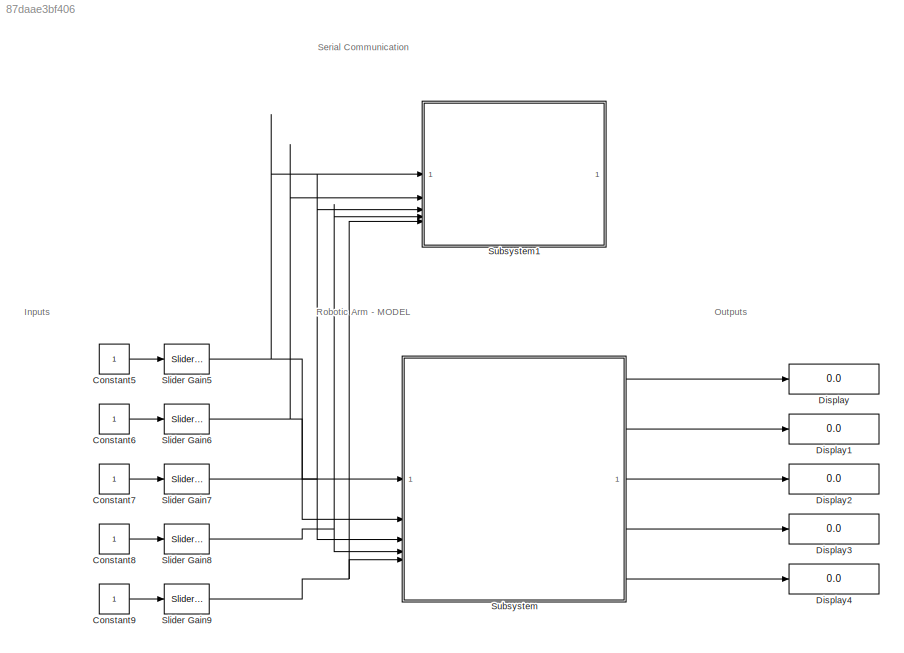
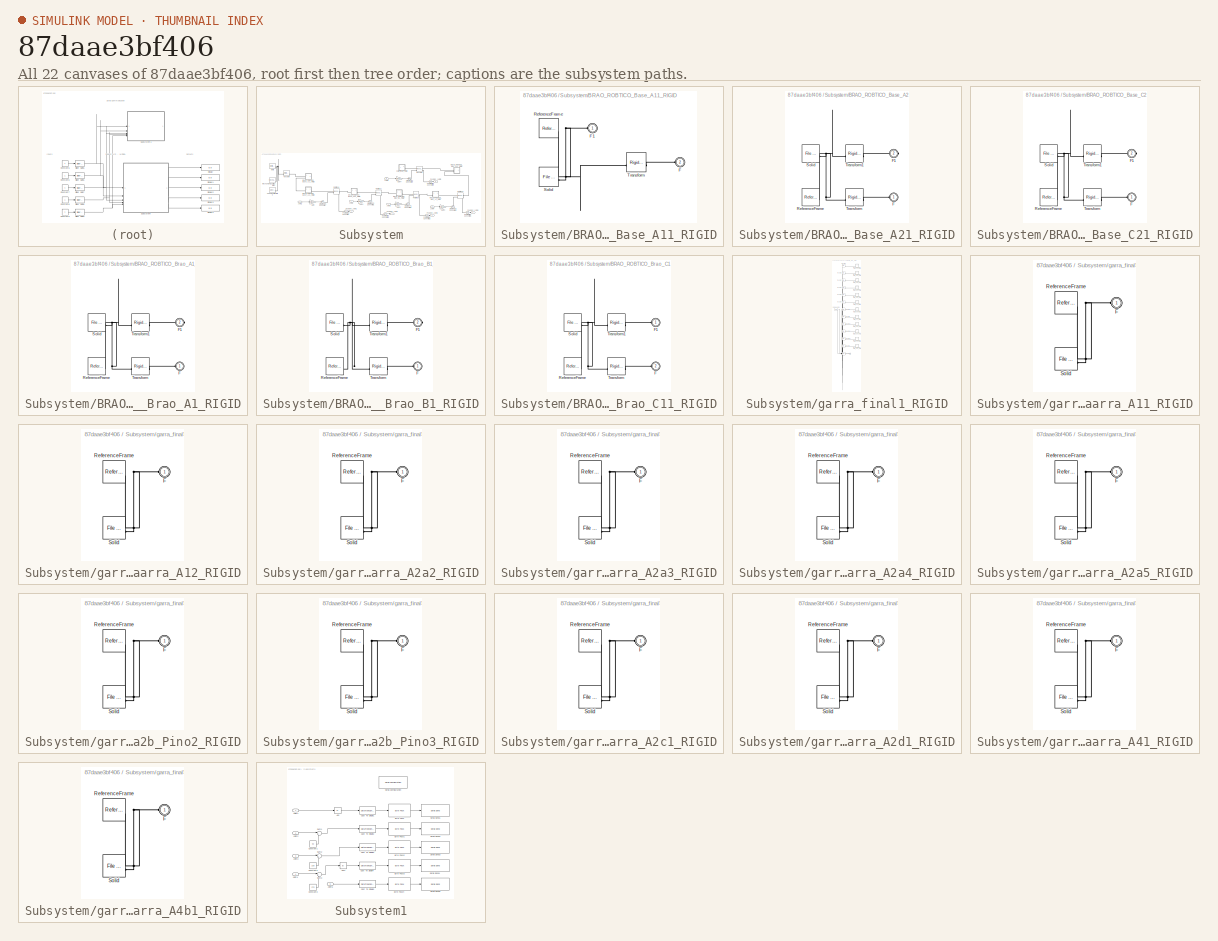
[diagram: thumbnail index - all 22 canvases of the model, root first then tree order]
MODEL slx_87daae3bf406
KIND model
CONFIG AbsTol = auto
CONFIG EnableMultiTasking = off
CONFIG FixedStep = auto
CONFIG MaxStep = auto
CONFIG MinStep = auto
CONFIG RelTol = 1e-3
CONFIG SampleTimeConstraint = Unconstrained
CONFIG SolverName = VariableStepAuto
CONFIG StartFcn = 1
CONFIG StartTime = 0.0
CONFIG StopTime = inf
WORKSPACE source: external: MATLAB File  (data not in archive)
BLOCK [Constant] Constant5
BLOCK [Constant] Constant6
BLOCK [Constant] Constant7
BLOCK [Constant] Constant8
BLOCK [Constant] Constant9
BLOCK [Display] Display
  Decimation = 1
BLOCK [Display] Display1
  Decimation = 1
BLOCK [Display] Display2
  Decimation = 1
BLOCK [Display] Display3
  Decimation = 1
BLOCK [Display] Display4
  Decimation = 1
BLOCK [Reference] Slider Gain5  REF=simulink/Math
Operations/Slider
Gain
  SourceBlock = simulink/Math\nOperations/Slider\nGain
  SourceType = Slider Gain
BLOCK [Reference] Slider Gain6  REF=simulink/Math
Operations/Slider
Gain
  SourceBlock = simulink/Math\nOperations/Slider\nGain
  SourceType = Slider Gain
BLOCK [Reference] Slider Gain7  REF=simulink/Math
Operations/Slider
Gain
  SourceBlock = simulink/Math\nOperations/Slider\nGain
  SourceType = Slider Gain
BLOCK [Reference] Slider Gain8  REF=simulink/Math
Operations/Slider
Gain
  SourceBlock = simulink/Math\nOperations/Slider\nGain
  SourceType = Slider Gain
BLOCK [Reference] Slider Gain9  REF=simulink/Math
Operations/Slider
Gain
  SourceBlock = simulink/Math\nOperations/Slider\nGain
  SourceType = Slider Gain
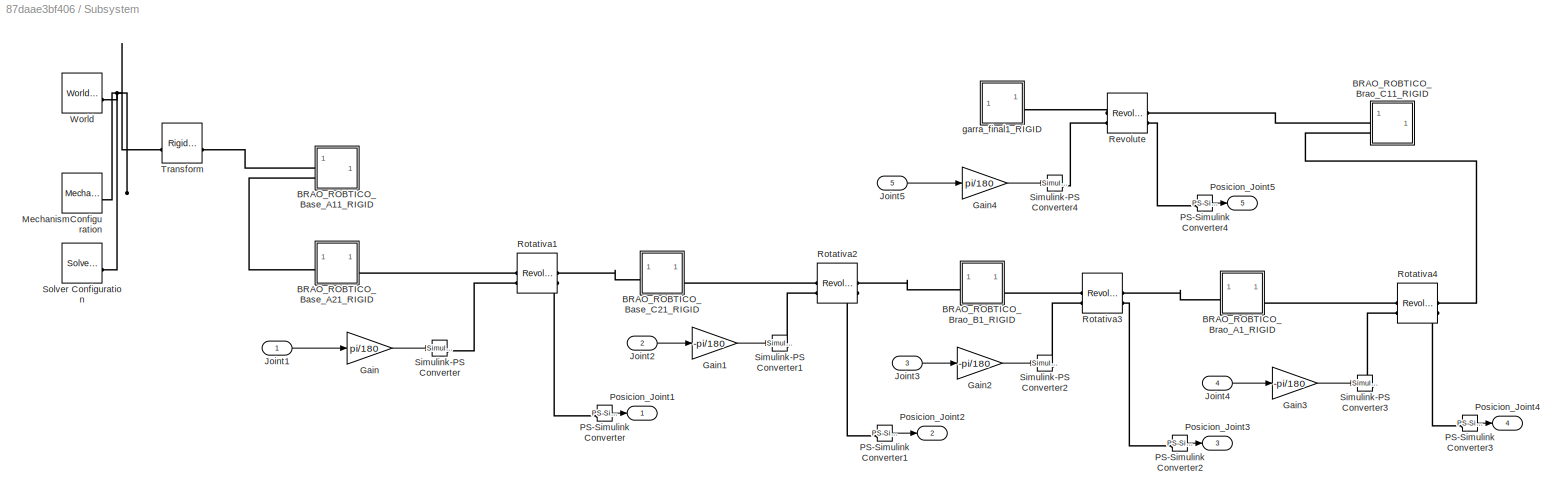
BLOCK [SubSystem] Subsystem
BLOCK [SubSystem] Subsystem/BRAO_ROBTICO_Base_A11_RIGID
BLOCK [PMIOPort] Subsystem/BRAO_ROBTICO_Base_A11_RIGID/F
  Port = 2
  Side = Left
BLOCK [PMIOPort] Subsystem/BRAO_ROBTICO_Base_A11_RIGID/F1
  Side = Left
BLOCK [Reference] Subsystem/BRAO_ROBTICO_Base_A11_RIGID/ReferenceFrame  REF=sm_lib/Frames and
Transforms/Reference
Frame
  SourceBlock = sm_lib/Frames and\nTransforms/Reference\nFrame
  SourceType = Reference\nFrame
BLOCK [Reference] Subsystem/BRAO_ROBTICO_Base_A11_RIGID/Solid  REF=sm_lib/Body Elements/File Solid
  SourceBlock = sm_lib/Body Elements/File Solid
  SourceType = File Solid
BLOCK [Reference] Subsystem/BRAO_ROBTICO_Base_A11_RIGID/Transform  REF=sm_lib/Frames and
Transforms/Rigid
Transform
  SourceBlock = sm_lib/Frames and\nTransforms/Rigid\nTransform
  SourceType = Rigid\nTransform
BLOCK [SubSystem] Subsystem/BRAO_ROBTICO_Base_A21_RIGID
BLOCK [PMIOPort] Subsystem/BRAO_ROBTICO_Base_A21_RIGID/F
  Side = Left
BLOCK [PMIOPort] Subsystem/BRAO_ROBTICO_Base_A21_RIGID/F1
  Port = 2
  Side = Right
BLOCK [Reference] Subsystem/BRAO_ROBTICO_Base_A21_RIGID/ReferenceFrame  REF=sm_lib/Frames and
Transforms/Reference
Frame
  SourceBlock = sm_lib/Frames and\nTransforms/Reference\nFrame
  SourceType = Reference\nFrame
BLOCK [Reference] Subsystem/BRAO_ROBTICO_Base_A21_RIGID/Solid  REF=sm_lib/Body Elements/File Solid
  SourceBlock = sm_lib/Body Elements/File Solid
  SourceType = File Solid
BLOCK [Reference] Subsystem/BRAO_ROBTICO_Base_A21_RIGID/Transform  REF=sm_lib/Frames and
Transforms/Rigid
Transform
  SourceBlock = sm_lib/Frames and\nTransforms/Rigid\nTransform
  SourceType = Rigid\nTransform
BLOCK [Reference] Subsystem/BRAO_ROBTICO_Base_A21_RIGID/Transform1  REF=sm_lib/Frames and
Transforms/Rigid
Transform
  SourceBlock = sm_lib/Frames and\nTransforms/Rigid\nTransform
  SourceType = Rigid\nTransform
BLOCK [SubSystem] Subsystem/BRAO_ROBTICO_Base_C21_RIGID
BLOCK [PMIOPort] Subsystem/BRAO_ROBTICO_Base_C21_RIGID/F
  Side = Left
BLOCK [PMIOPort] Subsystem/BRAO_ROBTICO_Base_C21_RIGID/F1
  Port = 2
  Side = Right
BLOCK [Reference] Subsystem/BRAO_ROBTICO_Base_C21_RIGID/ReferenceFrame  REF=sm_lib/Frames and
Transforms/Reference
Frame
  SourceBlock = sm_lib/Frames and\nTransforms/Reference\nFrame
  SourceType = Reference\nFrame
BLOCK [Reference] Subsystem/BRAO_ROBTICO_Base_C21_RIGID/Solid  REF=sm_lib/Body Elements/File Solid
  SourceBlock = sm_lib/Body Elements/File Solid
  SourceType = File Solid
BLOCK [Reference] Subsystem/BRAO_ROBTICO_Base_C21_RIGID/Transform  REF=sm_lib/Frames and
Transforms/Rigid
Transform
  SourceBlock = sm_lib/Frames and\nTransforms/Rigid\nTransform
  SourceType = Rigid\nTransform
BLOCK [Reference] Subsystem/BRAO_ROBTICO_Base_C21_RIGID/Transform1  REF=sm_lib/Frames and
Transforms/Rigid
Transform
  SourceBlock = sm_lib/Frames and\nTransforms/Rigid\nTransform
  SourceType = Rigid\nTransform
BLOCK [SubSystem] Subsystem/BRAO_ROBTICO_Brao_A1_RIGID
BLOCK [PMIOPort] Subsystem/BRAO_ROBTICO_Brao_A1_RIGID/F
  Side = Left
BLOCK [PMIOPort] Subsystem/BRAO_ROBTICO_Brao_A1_RIGID/F1
  Port = 2
  Side = Right
BLOCK [Reference] Subsystem/BRAO_ROBTICO_Brao_A1_RIGID/ReferenceFrame  REF=sm_lib/Frames and
Transforms/Reference
Frame
  SourceBlock = sm_lib/Frames and\nTransforms/Reference\nFrame
  SourceType = Reference\nFrame
BLOCK [Reference] Subsystem/BRAO_ROBTICO_Brao_A1_RIGID/Solid  REF=sm_lib/Body Elements/File Solid
  SourceBlock = sm_lib/Body Elements/File Solid
  SourceType = File Solid
BLOCK [Reference] Subsystem/BRAO_ROBTICO_Brao_A1_RIGID/Transform  REF=sm_lib/Frames and
Transforms/Rigid
Transform
  SourceBlock = sm_lib/Frames and\nTransforms/Rigid\nTransform
  SourceType = Rigid\nTransform
BLOCK [Reference] Subsystem/BRAO_ROBTICO_Brao_A1_RIGID/Transform1  REF=sm_lib/Frames and
Transforms/Rigid
Transform
  SourceBlock = sm_lib/Frames and\nTransforms/Rigid\nTransform
  SourceType = Rigid\nTransform
BLOCK [SubSystem] Subsystem/BRAO_ROBTICO_Brao_B1_RIGID
BLOCK [PMIOPort] Subsystem/BRAO_ROBTICO_Brao_B1_RIGID/F
  Side = Left
BLOCK [PMIOPort] Subsystem/BRAO_ROBTICO_Brao_B1_RIGID/F1
  Port = 2
  Side = Right
BLOCK [Reference] Subsystem/BRAO_ROBTICO_Brao_B1_RIGID/ReferenceFrame  REF=sm_lib/Frames and
Transforms/Reference
Frame
  SourceBlock = sm_lib/Frames and\nTransforms/Reference\nFrame
  SourceType = Reference\nFrame
BLOCK [Reference] Subsystem/BRAO_ROBTICO_Brao_B1_RIGID/Solid  REF=sm_lib/Body Elements/File Solid
  SourceBlock = sm_lib/Body Elements/File Solid
  SourceType = File Solid
BLOCK [Reference] Subsystem/BRAO_ROBTICO_Brao_B1_RIGID/Transform  REF=sm_lib/Frames and
Transforms/Rigid
Transform
  SourceBlock = sm_lib/Frames and\nTransforms/Rigid\nTransform
  SourceType = Rigid\nTransform
BLOCK [Reference] Subsystem/BRAO_ROBTICO_Brao_B1_RIGID/Transform1  REF=sm_lib/Frames and
Transforms/Rigid
Transform
  SourceBlock = sm_lib/Frames and\nTransforms/Rigid\nTransform
  SourceType = Rigid\nTransform
BLOCK [SubSystem] Subsystem/BRAO_ROBTICO_Brao_C11_RIGID
BLOCK [PMIOPort] Subsystem/BRAO_ROBTICO_Brao_C11_RIGID/F
  Port = 2
  Side = Left
BLOCK [PMIOPort] Subsystem/BRAO_ROBTICO_Brao_C11_RIGID/F1
  Side = Left
BLOCK [Reference] Subsystem/BRAO_ROBTICO_Brao_C11_RIGID/ReferenceFrame  REF=sm_lib/Frames and
Transforms/Reference
Frame
  SourceBlock = sm_lib/Frames and\nTransforms/Reference\nFrame
  SourceType = Reference\nFrame
BLOCK [Reference] Subsystem/BRAO_ROBTICO_Brao_C11_RIGID/Solid  REF=sm_lib/Body Elements/File Solid
  SourceBlock = sm_lib/Body Elements/File Solid
  SourceType = File Solid
BLOCK [Reference] Subsystem/BRAO_ROBTICO_Brao_C11_RIGID/Transform  REF=sm_lib/Frames and
Transforms/Rigid
Transform
  SourceBlock = sm_lib/Frames and\nTransforms/Rigid\nTransform
  SourceType = Rigid\nTransform
BLOCK [Reference] Subsystem/BRAO_ROBTICO_Brao_C11_RIGID/Transform1  REF=sm_lib/Frames and
Transforms/Rigid
Transform
  SourceBlock = sm_lib/Frames and\nTransforms/Rigid\nTransform
  SourceType = Rigid\nTransform
BLOCK [Gain] Subsystem/Gain
  Gain = pi/180
BLOCK [Gain] Subsystem/Gain1
  Gain = -pi/180
BLOCK [Gain] Subsystem/Gain2
  Gain = -pi/180
BLOCK [Gain] Subsystem/Gain3
  Gain = -pi/180
BLOCK [Gain] Subsystem/Gain4
  Gain = pi/180
BLOCK [Inport] Subsystem/Joint1
BLOCK [Inport] Subsystem/Joint2
  Port = 2
BLOCK [Inport] Subsystem/Joint3
  Port = 3
BLOCK [Inport] Subsystem/Joint4
  Port = 4
BLOCK [Inport] Subsystem/Joint5
  Port = 5
BLOCK [Reference] Subsystem/MechanismConfiguration  REF=sm_lib/Utilities/Mechanism
Configuration
  SourceBlock = sm_lib/Utilities/Mechanism\nConfiguration
  SourceType = Mechanism\nConfiguration
BLOCK [Reference] Subsystem/PS-Simulink Converter  REF=nesl_utility/PS-Simulink
Converter
  SourceBlock = nesl_utility/PS-Simulink\nConverter
  SourceType = PS-Simulink\nConverter
BLOCK [Reference] Subsystem/PS-Simulink Converter1  REF=nesl_utility/PS-Simulink
Converter
  SourceBlock = nesl_utility/PS-Simulink\nConverter
  SourceType = PS-Simulink\nConverter
BLOCK [Reference] Subsystem/PS-Simulink Converter2  REF=nesl_utility/PS-Simulink
Converter
  SourceBlock = nesl_utility/PS-Simulink\nConverter
  SourceType = PS-Simulink\nConverter
BLOCK [Reference] Subsystem/PS-Simulink Converter3  REF=nesl_utility/PS-Simulink
Converter
  SourceBlock = nesl_utility/PS-Simulink\nConverter
  SourceType = PS-Simulink\nConverter
BLOCK [Reference] Subsystem/PS-Simulink Converter4  REF=nesl_utility/PS-Simulink
Converter
  SourceBlock = nesl_utility/PS-Simulink\nConverter
  SourceType = PS-Simulink\nConverter
BLOCK [Outport] Subsystem/Posicion_Joint1
BLOCK [Outport] Subsystem/Posicion_Joint2
  Port = 2
BLOCK [Outport] Subsystem/Posicion_Joint3
  Port = 3
BLOCK [Outport] Subsystem/Posicion_Joint4
  Port = 4
BLOCK [Outport] Subsystem/Posicion_Joint5
  Port = 5
BLOCK [Reference] Subsystem/Revolute  REF=sm_lib/Joints/Revolute Joint
  SourceBlock = sm_lib/Joints/Revolute Joint
  SourceType = Revolute Joint
BLOCK [Reference] Subsystem/Rotativa1  REF=sm_lib/Joints/Revolute Joint
  SourceBlock = sm_lib/Joints/Revolute Joint
  SourceType = Revolute Joint
BLOCK [Reference] Subsystem/Rotativa2  REF=sm_lib/Joints/Revolute Joint
  SourceBlock = sm_lib/Joints/Revolute Joint
  SourceType = Revolute Joint
BLOCK [Reference] Subsystem/Rotativa3  REF=sm_lib/Joints/Revolute Joint
  SourceBlock = sm_lib/Joints/Revolute Joint
  SourceType = Revolute Joint
BLOCK [Reference] Subsystem/Rotativa4  REF=sm_lib/Joints/Revolute Joint
  SourceBlock = sm_lib/Joints/Revolute Joint
  SourceType = Revolute Joint
BLOCK [Reference] Subsystem/Simulink-PS Converter  REF=nesl_utility/Simulink-PS
Converter
  SourceBlock = nesl_utility/Simulink-PS\nConverter
  SourceType = Simulink-PS\nConverter
BLOCK [Reference] Subsystem/Simulink-PS Converter1  REF=nesl_utility/Simulink-PS
Converter
  SourceBlock = nesl_utility/Simulink-PS\nConverter
  SourceType = Simulink-PS\nConverter
BLOCK [Reference] Subsystem/Simulink-PS Converter2  REF=nesl_utility/Simulink-PS
Converter
  SourceBlock = nesl_utility/Simulink-PS\nConverter
  SourceType = Simulink-PS\nConverter
BLOCK [Reference] Subsystem/Simulink-PS Converter3  REF=nesl_utility/Simulink-PS
Converter
  SourceBlock = nesl_utility/Simulink-PS\nConverter
  SourceType = Simulink-PS\nConverter
BLOCK [Reference] Subsystem/Simulink-PS Converter4  REF=nesl_utility/Simulink-PS
Converter
  SourceBlock = nesl_utility/Simulink-PS\nConverter
  SourceType = Simulink-PS\nConverter
BLOCK [Reference] Subsystem/Solver Configuration  REF=nesl_utility/Solver
Configuration
  SourceBlock = nesl_utility/Solver\nConfiguration
  SourceType = Solver\nConfiguration
BLOCK [Reference] Subsystem/Transform  REF=sm_lib/Frames and
Transforms/Rigid
Transform
  SourceBlock = sm_lib/Frames and\nTransforms/Rigid\nTransform
  SourceType = Rigid\nTransform
BLOCK [Reference] Subsystem/World  REF=sm_lib/Frames and
Transforms/World Frame
  SourceBlock = sm_lib/Frames and\nTransforms/World Frame
  SourceType = World Frame
BLOCK [SubSystem] Subsystem/garra_final1_RIGID
BLOCK [SubSystem] Subsystem/garra_final1_RIGID/BRAO_ROBTICO_Garra_A11_RIGID
BLOCK [PMIOPort] Subsystem/garra_final1_RIGID/BRAO_ROBTICO_Garra_A11_RIGID/F
  Side = Left
BLOCK [Reference] Subsystem/garra_final1_RIGID/BRAO_ROBTICO_Garra_A11_RIGID/ReferenceFrame  REF=sm_lib/Frames and
Transforms/Reference
Frame
  SourceBlock = sm_lib/Frames and\nTransforms/Reference\nFrame
  SourceType = Reference\nFrame
BLOCK [Reference] Subsystem/garra_final1_RIGID/BRAO_ROBTICO_Garra_A11_RIGID/Solid  REF=sm_lib/Body Elements/File Solid
  SourceBlock = sm_lib/Body Elements/File Solid
  SourceType = File Solid
BLOCK [SubSystem] Subsystem/garra_final1_RIGID/BRAO_ROBTICO_Garra_A12_RIGID
BLOCK [PMIOPort] Subsystem/garra_final1_RIGID/BRAO_ROBTICO_Garra_A12_RIGID/F
  Side = Left
BLOCK [Reference] Subsystem/garra_final1_RIGID/BRAO_ROBTICO_Garra_A12_RIGID/ReferenceFrame  REF=sm_lib/Frames and
Transforms/Reference
Frame
  SourceBlock = sm_lib/Frames and\nTransforms/Reference\nFrame
  SourceType = Reference\nFrame
BLOCK [Reference] Subsystem/garra_final1_RIGID/BRAO_ROBTICO_Garra_A12_RIGID/Solid  REF=sm_lib/Body Elements/File Solid
  SourceBlock = sm_lib/Body Elements/File Solid
  SourceType = File Solid
BLOCK [SubSystem] Subsystem/garra_final1_RIGID/BRAO_ROBTICO_Garra_A2a2_RIGID
BLOCK [PMIOPort] Subsystem/garra_final1_RIGID/BRAO_ROBTICO_Garra_A2a2_RIGID/F
  Side = Left
BLOCK [Reference] Subsystem/garra_final1_RIGID/BRAO_ROBTICO_Garra_A2a2_RIGID/ReferenceFrame  REF=sm_lib/Frames and
Transforms/Reference
Frame
  SourceBlock = sm_lib/Frames and\nTransforms/Reference\nFrame
  SourceType = Reference\nFrame
BLOCK [Reference] Subsystem/garra_final1_RIGID/BRAO_ROBTICO_Garra_A2a2_RIGID/Solid  REF=sm_lib/Body Elements/File Solid
  SourceBlock = sm_lib/Body Elements/File Solid
  SourceType = File Solid
BLOCK [SubSystem] Subsystem/garra_final1_RIGID/BRAO_ROBTICO_Garra_A2a3_RIGID
BLOCK [PMIOPort] Subsystem/garra_final1_RIGID/BRAO_ROBTICO_Garra_A2a3_RIGID/F
  Side = Left
BLOCK [Reference] Subsystem/garra_final1_RIGID/BRAO_ROBTICO_Garra_A2a3_RIGID/ReferenceFrame  REF=sm_lib/Frames and
Transforms/Reference
Frame
  SourceBlock = sm_lib/Frames and\nTransforms/Reference\nFrame
  SourceType = Reference\nFrame
BLOCK [Reference] Subsystem/garra_final1_RIGID/BRAO_ROBTICO_Garra_A2a3_RIGID/Solid  REF=sm_lib/Body Elements/File Solid
  SourceBlock = sm_lib/Body Elements/File Solid
  SourceType = File Solid
BLOCK [SubSystem] Subsystem/garra_final1_RIGID/BRAO_ROBTICO_Garra_A2a4_RIGID
BLOCK [PMIOPort] Subsystem/garra_final1_RIGID/BRAO_ROBTICO_Garra_A2a4_RIGID/F
  Side = Left
BLOCK [Reference] Subsystem/garra_final1_RIGID/BRAO_ROBTICO_Garra_A2a4_RIGID/ReferenceFrame  REF=sm_lib/Frames and
Transforms/Reference
Frame
  SourceBlock = sm_lib/Frames and\nTransforms/Reference\nFrame
  SourceType = Reference\nFrame
BLOCK [Reference] Subsystem/garra_final1_RIGID/BRAO_ROBTICO_Garra_A2a4_RIGID/Solid  REF=sm_lib/Body Elements/File Solid
  SourceBlock = sm_lib/Body Elements/File Solid
  SourceType = File Solid
BLOCK [SubSystem] Subsystem/garra_final1_RIGID/BRAO_ROBTICO_Garra_A2a5_RIGID
BLOCK [PMIOPort] Subsystem/garra_final1_RIGID/BRAO_ROBTICO_Garra_A2a5_RIGID/F
  Side = Left
BLOCK [Reference] Subsystem/garra_final1_RIGID/BRAO_ROBTICO_Garra_A2a5_RIGID/ReferenceFrame  REF=sm_lib/Frames and
Transforms/Reference
Frame
  SourceBlock = sm_lib/Frames and\nTransforms/Reference\nFrame
  SourceType = Reference\nFrame
BLOCK [Reference] Subsystem/garra_final1_RIGID/BRAO_ROBTICO_Garra_A2a5_RIGID/Solid  REF=sm_lib/Body Elements/File Solid
  SourceBlock = sm_lib/Body Elements/File Solid
  SourceType = File Solid
BLOCK [SubSystem] Subsystem/garra_final1_RIGID/BRAO_ROBTICO_Garra_A2b_Pino2_RIGID
BLOCK [PMIOPort] Subsystem/garra_final1_RIGID/BRAO_ROBTICO_Garra_A2b_Pino2_RIGID/F
  Side = Left
BLOCK [Reference] Subsystem/garra_final1_RIGID/BRAO_ROBTICO_Garra_A2b_Pino2_RIGID/ReferenceFrame  REF=sm_lib/Frames and
Transforms/Reference
Frame
  SourceBlock = sm_lib/Frames and\nTransforms/Reference\nFrame
  SourceType = Reference\nFrame
BLOCK [Reference] Subsystem/garra_final1_RIGID/BRAO_ROBTICO_Garra_A2b_Pino2_RIGID/Solid  REF=sm_lib/Body Elements/File Solid
  SourceBlock = sm_lib/Body Elements/File Solid
  SourceType = File Solid
BLOCK [SubSystem] Subsystem/garra_final1_RIGID/BRAO_ROBTICO_Garra_A2b_Pino3_RIGID
BLOCK [PMIOPort] Subsystem/garra_final1_RIGID/BRAO_ROBTICO_Garra_A2b_Pino3_RIGID/F
  Side = Left
BLOCK [Reference] Subsystem/garra_final1_RIGID/BRAO_ROBTICO_Garra_A2b_Pino3_RIGID/ReferenceFrame  REF=sm_lib/Frames and
Transforms/Reference
Frame
  SourceBlock = sm_lib/Frames and\nTransforms/Reference\nFrame
  SourceType = Reference\nFrame
BLOCK [Reference] Subsystem/garra_final1_RIGID/BRAO_ROBTICO_Garra_A2b_Pino3_RIGID/Solid  REF=sm_lib/Body Elements/File Solid
  SourceBlock = sm_lib/Body Elements/File Solid
  SourceType = File Solid
BLOCK [SubSystem] Subsystem/garra_final1_RIGID/BRAO_ROBTICO_Garra_A2c1_RIGID
BLOCK [PMIOPort] Subsystem/garra_final1_RIGID/BRAO_ROBTICO_Garra_A2c1_RIGID/F
  Side = Left
BLOCK [Reference] Subsystem/garra_final1_RIGID/BRAO_ROBTICO_Garra_A2c1_RIGID/ReferenceFrame  REF=sm_lib/Frames and
Transforms/Reference
Frame
  SourceBlock = sm_lib/Frames and\nTransforms/Reference\nFrame
  SourceType = Reference\nFrame
BLOCK [Reference] Subsystem/garra_final1_RIGID/BRAO_ROBTICO_Garra_A2c1_RIGID/Solid  REF=sm_lib/Body Elements/File Solid
  SourceBlock = sm_lib/Body Elements/File Solid
  SourceType = File Solid
BLOCK [SubSystem] Subsystem/garra_final1_RIGID/BRAO_ROBTICO_Garra_A2d1_RIGID
BLOCK [PMIOPort] Subsystem/garra_final1_RIGID/BRAO_ROBTICO_Garra_A2d1_RIGID/F
  Side = Left
BLOCK [Reference] Subsystem/garra_final1_RIGID/BRAO_ROBTICO_Garra_A2d1_RIGID/ReferenceFrame  REF=sm_lib/Frames and
Transforms/Reference
Frame
  SourceBlock = sm_lib/Frames and\nTransforms/Reference\nFrame
  SourceType = Reference\nFrame
BLOCK [Reference] Subsystem/garra_final1_RIGID/BRAO_ROBTICO_Garra_A2d1_RIGID/Solid  REF=sm_lib/Body Elements/File Solid
  SourceBlock = sm_lib/Body Elements/File Solid
  SourceType = File Solid
BLOCK [SubSystem] Subsystem/garra_final1_RIGID/BRAO_ROBTICO_Garra_A41_RIGID
BLOCK [PMIOPort] Subsystem/garra_final1_RIGID/BRAO_ROBTICO_Garra_A41_RIGID/F
  Side = Left
BLOCK [Reference] Subsystem/garra_final1_RIGID/BRAO_ROBTICO_Garra_A41_RIGID/ReferenceFrame  REF=sm_lib/Frames and
Transforms/Reference
Frame
  SourceBlock = sm_lib/Frames and\nTransforms/Reference\nFrame
  SourceType = Reference\nFrame
BLOCK [Reference] Subsystem/garra_final1_RIGID/BRAO_ROBTICO_Garra_A41_RIGID/Solid  REF=sm_lib/Body Elements/File Solid
  SourceBlock = sm_lib/Body Elements/File Solid
  SourceType = File Solid
BLOCK [SubSystem] Subsystem/garra_final1_RIGID/BRAO_ROBTICO_Garra_A4b1_RIGID
BLOCK [PMIOPort] Subsystem/garra_final1_RIGID/BRAO_ROBTICO_Garra_A4b1_RIGID/F
  Side = Left
BLOCK [Reference] Subsystem/garra_final1_RIGID/BRAO_ROBTICO_Garra_A4b1_RIGID/ReferenceFrame  REF=sm_lib/Frames and
Transforms/Reference
Frame
  SourceBlock = sm_lib/Frames and\nTransforms/Reference\nFrame
  SourceType = Reference\nFrame
BLOCK [Reference] Subsystem/garra_final1_RIGID/BRAO_ROBTICO_Garra_A4b1_RIGID/Solid  REF=sm_lib/Body Elements/File Solid
  SourceBlock = sm_lib/Body Elements/File Solid
  SourceType = File Solid
BLOCK [PMIOPort] Subsystem/garra_final1_RIGID/F
  Side = Right
BLOCK [Reference] Subsystem/garra_final1_RIGID/ReferenceFrame  REF=sm_lib/Frames and
Transforms/Reference
Frame
  SourceBlock = sm_lib/Frames and\nTransforms/Reference\nFrame
  SourceType = Reference\nFrame
BLOCK [Reference] Subsystem/garra_final1_RIGID/Transform  REF=sm_lib/Frames and
Transforms/Rigid
Transform
  SourceBlock = sm_lib/Frames and\nTransforms/Rigid\nTransform
  SourceType = Rigid\nTransform
BLOCK [Reference] Subsystem/garra_final1_RIGID/Transform1  REF=sm_lib/Frames and
Transforms/Rigid
Transform
  SourceBlock = sm_lib/Frames and\nTransforms/Rigid\nTransform
  SourceType = Rigid\nTransform
BLOCK [Reference] Subsystem/garra_final1_RIGID/Transform10  REF=sm_lib/Frames and
Transforms/Rigid
Transform
  SourceBlock = sm_lib/Frames and\nTransforms/Rigid\nTransform
  SourceType = Rigid\nTransform
BLOCK [Reference] Subsystem/garra_final1_RIGID/Transform11  REF=sm_lib/Frames and
Transforms/Rigid
Transform
  SourceBlock = sm_lib/Frames and\nTransforms/Rigid\nTransform
  SourceType = Rigid\nTransform
BLOCK [Reference] Subsystem/garra_final1_RIGID/Transform12  REF=sm_lib/Frames and
Transforms/Rigid
Transform
  SourceBlock = sm_lib/Frames and\nTransforms/Rigid\nTransform
  SourceType = Rigid\nTransform
BLOCK [Reference] Subsystem/garra_final1_RIGID/Transform2  REF=sm_lib/Frames and
Transforms/Rigid
Transform
  SourceBlock = sm_lib/Frames and\nTransforms/Rigid\nTransform
  SourceType = Rigid\nTransform
BLOCK [Reference] Subsystem/garra_final1_RIGID/Transform3  REF=sm_lib/Frames and
Transforms/Rigid
Transform
  SourceBlock = sm_lib/Frames and\nTransforms/Rigid\nTransform
  SourceType = Rigid\nTransform
BLOCK [Reference] Subsystem/garra_final1_RIGID/Transform4  REF=sm_lib/Frames and
Transforms/Rigid
Transform
  SourceBlock = sm_lib/Frames and\nTransforms/Rigid\nTransform
  SourceType = Rigid\nTransform
BLOCK [Reference] Subsystem/garra_final1_RIGID/Transform5  REF=sm_lib/Frames and
Transforms/Rigid
Transform
  SourceBlock = sm_lib/Frames and\nTransforms/Rigid\nTransform
  SourceType = Rigid\nTransform
BLOCK [Reference] Subsystem/garra_final1_RIGID/Transform6  REF=sm_lib/Frames and
Transforms/Rigid
Transform
  SourceBlock = sm_lib/Frames and\nTransforms/Rigid\nTransform
  SourceType = Rigid\nTransform
BLOCK [Reference] Subsystem/garra_final1_RIGID/Transform7  REF=sm_lib/Frames and
Transforms/Rigid
Transform
  SourceBlock = sm_lib/Frames and\nTransforms/Rigid\nTransform
  SourceType = Rigid\nTransform
BLOCK [Reference] Subsystem/garra_final1_RIGID/Transform8  REF=sm_lib/Frames and
Transforms/Rigid
Transform
  SourceBlock = sm_lib/Frames and\nTransforms/Rigid\nTransform
  SourceType = Rigid\nTransform
BLOCK [Reference] Subsystem/garra_final1_RIGID/Transform9  REF=sm_lib/Frames and
Transforms/Rigid
Transform
  SourceBlock = sm_lib/Frames and\nTransforms/Rigid\nTransform
  SourceType = Rigid\nTransform
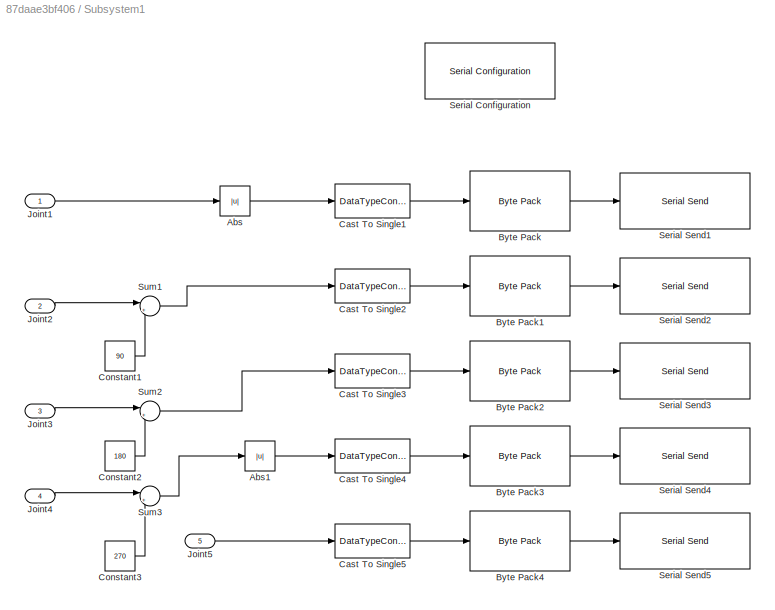
BLOCK [SubSystem] Subsystem1
BLOCK [Abs] Subsystem1/Abs
  SaturateOnIntegerOverflow = off
BLOCK [Abs] Subsystem1/Abs1
  SaturateOnIntegerOverflow = off
BLOCK [Reference] Subsystem1/Byte Pack  REF=svdutilitieslib/Byte Pack
  SourceBlock = svdutilitieslib/Byte Pack
  SourceType = Byte pack
BLOCK [Reference] Subsystem1/Byte Pack1  REF=svdutilitieslib/Byte Pack
  SourceBlock = svdutilitieslib/Byte Pack
  SourceType = Byte pack
BLOCK [Reference] Subsystem1/Byte Pack2  REF=svdutilitieslib/Byte Pack
  SourceBlock = svdutilitieslib/Byte Pack
  SourceType = Byte pack
BLOCK [Reference] Subsystem1/Byte Pack3  REF=svdutilitieslib/Byte Pack
  SourceBlock = svdutilitieslib/Byte Pack
  SourceType = Byte pack
BLOCK [Reference] Subsystem1/Byte Pack4  REF=svdutilitieslib/Byte Pack
  SourceBlock = svdutilitieslib/Byte Pack
  SourceType = Byte pack
BLOCK [DataTypeConversion] Subsystem1/Cast To Single1
  OutDataTypeStr = single
  RndMeth = Floor
  SaturateOnIntegerOverflow = off
BLOCK [DataTypeConversion] Subsystem1/Cast To Single2
  OutDataTypeStr = single
  RndMeth = Floor
  SaturateOnIntegerOverflow = off
BLOCK [DataTypeConversion] Subsystem1/Cast To Single3
  OutDataTypeStr = single
  RndMeth = Floor
  SaturateOnIntegerOverflow = off
BLOCK [DataTypeConversion] Subsystem1/Cast To Single4
  OutDataTypeStr = single
  RndMeth = Floor
  SaturateOnIntegerOverflow = off
BLOCK [DataTypeConversion] Subsystem1/Cast To Single5
  OutDataTypeStr = single
  RndMeth = Floor
  SaturateOnIntegerOverflow = off
BLOCK [Constant] Subsystem1/Constant1
  Value = 90
BLOCK [Constant] Subsystem1/Constant2
  Value = 180
BLOCK [Constant] Subsystem1/Constant3
  Value = 270
BLOCK [Inport] Subsystem1/Joint1
BLOCK [Inport] Subsystem1/Joint2
  Port = 2
BLOCK [Inport] Subsystem1/Joint3
  Port = 3
BLOCK [Inport] Subsystem1/Joint4
  Port = 4
BLOCK [Inport] Subsystem1/Joint5
  Port = 5
BLOCK [Reference] Subsystem1/Serial Configuration  REF=instrumentseriallib/Serial Configuration
  Priority = -200000
  SourceBlock = instrumentseriallib/Serial Configuration
  SourceType = system.SerialConfiguration
BLOCK [Reference] Subsystem1/Serial Send1  REF=instrumentseriallib/Serial Send
  Priority = 1
  SourceBlock = instrumentseriallib/Serial Send
  SourceType = system.SerialSend
BLOCK [Reference] Subsystem1/Serial Send2  REF=instrumentseriallib/Serial Send
  Priority = 1
  SourceBlock = instrumentseriallib/Serial Send
  SourceType = system.SerialSend
BLOCK [Reference] Subsystem1/Serial Send3  REF=instrumentseriallib/Serial Send
  Priority = 1
  SourceBlock = instrumentseriallib/Serial Send
  SourceType = system.SerialSend
BLOCK [Reference] Subsystem1/Serial Send4  REF=instrumentseriallib/Serial Send
  Priority = 1
  SourceBlock = instrumentseriallib/Serial Send
  SourceType = system.SerialSend
BLOCK [Reference] Subsystem1/Serial Send5  REF=instrumentseriallib/Serial Send
  Priority = 1
  SourceBlock = instrumentseriallib/Serial Send
  SourceType = system.SerialSend
BLOCK [Sum] Subsystem1/Sum1
  Inputs = |++
BLOCK [Sum] Subsystem1/Sum2
  Inputs = |+-
BLOCK [Sum] Subsystem1/Sum3
  Inputs = |+-
ANNOTATION (root): Inputs
ANNOTATION (root): Outputs
ANNOTATION (root): Robotic Arm - MODEL
ANNOTATION (root): Serial Communication
LINE Constant5:1 -> Slider Gain5:1
LINE Constant6:1 -> Slider Gain6:1
LINE Constant7:1 -> Slider Gain7:1
LINE Constant8:1 -> Slider Gain8:1
LINE Constant9:1 -> Slider Gain9:1
NET Slider Gain5:1 -> Subsystem1:1, Subsystem:1
NET Slider Gain6:1 -> Subsystem1:2, Subsystem:2
NET Slider Gain7:1 -> Subsystem1:3, Subsystem:3
NET Slider Gain8:1 -> Subsystem1:4, Subsystem:4
NET Slider Gain9:1 -> Subsystem1:5, Subsystem:5
LINE Subsystem/Gain1:1 -> Subsystem/Simulink-PS Converter1:1
LINE Subsystem/Gain2:1 -> Subsystem/Simulink-PS Converter2:1
LINE Subsystem/Gain3:1 -> Subsystem/Simulink-PS Converter3:1
LINE Subsystem/Gain4:1 -> Subsystem/Simulink-PS Converter4:1
LINE Subsystem/Gain:1 -> Subsystem/Simulink-PS Converter:1
LINE Subsystem/Joint1:1 -> Subsystem/Gain:1
LINE Subsystem/Joint2:1 -> Subsystem/Gain1:1
LINE Subsystem/Joint3:1 -> Subsystem/Gain2:1
LINE Subsystem/Joint4:1 -> Subsystem/Gain3:1
LINE Subsystem/Joint5:1 -> Subsystem/Gain4:1
LINE Subsystem/PS-Simulink Converter1:1 -> Subsystem/Posicion_Joint2:1
LINE Subsystem/PS-Simulink Converter2:1 -> Subsystem/Posicion_Joint3:1
LINE Subsystem/PS-Simulink Converter3:1 -> Subsystem/Posicion_Joint4:1
LINE Subsystem/PS-Simulink Converter4:1 -> Subsystem/Posicion_Joint5:1
LINE Subsystem/PS-Simulink Converter:1 -> Subsystem/Posicion_Joint1:1
LINE Subsystem1/Abs1:1 -> Subsystem1/Cast To Single4:1
LINE Subsystem1/Abs:1 -> Subsystem1/Cast To Single1:1
LINE Subsystem1/Byte Pack1:1 -> Subsystem1/Serial Send2:1
LINE Subsystem1/Byte Pack2:1 -> Subsystem1/Serial Send3:1
LINE Subsystem1/Byte Pack3:1 -> Subsystem1/Serial Send4:1
LINE Subsystem1/Byte Pack4:1 -> Subsystem1/Serial Send5:1
LINE Subsystem1/Byte Pack:1 -> Subsystem1/Serial Send1:1
LINE Subsystem1/Cast To Single1:1 -> Subsystem1/Byte Pack:1
LINE Subsystem1/Cast To Single2:1 -> Subsystem1/Byte Pack1:1
LINE Subsystem1/Cast To Single3:1 -> Subsystem1/Byte Pack2:1
LINE Subsystem1/Cast To Single4:1 -> Subsystem1/Byte Pack3:1
LINE Subsystem1/Cast To Single5:1 -> Subsystem1/Byte Pack4:1
LINE Subsystem1/Constant1:1 -> Subsystem1/Sum1:2
LINE Subsystem1/Constant2:1 -> Subsystem1/Sum2:2
LINE Subsystem1/Constant3:1 -> Subsystem1/Sum3:2
LINE Subsystem1/Joint1:1 -> Subsystem1/Abs:1
LINE Subsystem1/Joint2:1 -> Subsystem1/Sum1:1
LINE Subsystem1/Joint3:1 -> Subsystem1/Sum2:1
LINE Subsystem1/Joint4:1 -> Subsystem1/Sum3:1
LINE Subsystem1/Joint5:1 -> Subsystem1/Cast To Single5:1
LINE Subsystem1/Sum1:1 -> Subsystem1/Cast To Single2:1
LINE Subsystem1/Sum2:1 -> Subsystem1/Cast To Single3:1
LINE Subsystem1/Sum3:1 -> Subsystem1/Abs1:1
LINE Subsystem:1 -> Display:1
LINE Subsystem:2 -> Display1:1
LINE Subsystem:3 -> Display2:1
LINE Subsystem:4 -> Display3:1
LINE Subsystem:5 -> Display4:1
PNET net1: Subsystem/BRAO_ROBTICO_Base_A11_RIGID/F1:RConn1 -- Subsystem/BRAO_ROBTICO_Base_A11_RIGID/ReferenceFrame:RConn1 -- Subsystem/BRAO_ROBTICO_Base_A11_RIGID/Solid:RConn1 -- Subsystem/BRAO_ROBTICO_Base_A11_RIGID/Transform:LConn1
PLINE Subsystem/BRAO_ROBTICO_Base_A11_RIGID/F:RConn1 -- Subsystem/BRAO_ROBTICO_Base_A11_RIGID/Transform:RConn1
PLINE Subsystem/BRAO_ROBTICO_Base_A11_RIGID:LConn1 -- Subsystem/Transform:RConn1
PLINE Subsystem/BRAO_ROBTICO_Base_A11_RIGID:LConn2 -- Subsystem/BRAO_ROBTICO_Base_A21_RIGID:LConn1
PLINE Subsystem/BRAO_ROBTICO_Base_A21_RIGID/F1:RConn1 -- Subsystem/BRAO_ROBTICO_Base_A21_RIGID/Transform1:RConn1
PLINE Subsystem/BRAO_ROBTICO_Base_A21_RIGID/F:RConn1 -- Subsystem/BRAO_ROBTICO_Base_A21_RIGID/Transform:RConn1
PNET net2: Subsystem/BRAO_ROBTICO_Base_A21_RIGID/ReferenceFrame:RConn1 -- Subsystem/BRAO_ROBTICO_Base_A21_RIGID/Solid:RConn1 -- Subsystem/BRAO_ROBTICO_Base_A21_RIGID/Transform1:LConn1 -- Subsystem/BRAO_ROBTICO_Base_A21_RIGID/Transform:LConn1
PLINE Subsystem/BRAO_ROBTICO_Base_A21_RIGID:RConn1 -- Subsystem/Rotativa1:LConn1
PLINE Subsystem/BRAO_ROBTICO_Base_C21_RIGID/F1:RConn1 -- Subsystem/BRAO_ROBTICO_Base_C21_RIGID/Transform1:RConn1
PLINE Subsystem/BRAO_ROBTICO_Base_C21_RIGID/F:RConn1 -- Subsystem/BRAO_ROBTICO_Base_C21_RIGID/Transform:RConn1
PNET net3: Subsystem/BRAO_ROBTICO_Base_C21_RIGID/ReferenceFrame:RConn1 -- Subsystem/BRAO_ROBTICO_Base_C21_RIGID/Solid:RConn1 -- Subsystem/BRAO_ROBTICO_Base_C21_RIGID/Transform1:LConn1 -- Subsystem/BRAO_ROBTICO_Base_C21_RIGID/Transform:LConn1
PLINE Subsystem/BRAO_ROBTICO_Base_C21_RIGID:LConn1 -- Subsystem/Rotativa1:RConn1
PLINE Subsystem/BRAO_ROBTICO_Base_C21_RIGID:RConn1 -- Subsystem/Rotativa2:LConn1
PLINE Subsystem/BRAO_ROBTICO_Brao_A1_RIGID/F1:RConn1 -- Subsystem/BRAO_ROBTICO_Brao_A1_RIGID/Transform1:RConn1
PLINE Subsystem/BRAO_ROBTICO_Brao_A1_RIGID/F:RConn1 -- Subsystem/BRAO_ROBTICO_Brao_A1_RIGID/Transform:RConn1
PNET net4: Subsystem/BRAO_ROBTICO_Brao_A1_RIGID/ReferenceFrame:RConn1 -- Subsystem/BRAO_ROBTICO_Brao_A1_RIGID/Solid:RConn1 -- Subsystem/BRAO_ROBTICO_Brao_A1_RIGID/Transform1:LConn1 -- Subsystem/BRAO_ROBTICO_Brao_A1_RIGID/Transform:LConn1
PLINE Subsystem/BRAO_ROBTICO_Brao_A1_RIGID:LConn1 -- Subsystem/Rotativa3:RConn1
PLINE Subsystem/BRAO_ROBTICO_Brao_A1_RIGID:RConn1 -- Subsystem/Rotativa4:LConn1
PLINE Subsystem/BRAO_ROBTICO_Brao_B1_RIGID/F1:RConn1 -- Subsystem/BRAO_ROBTICO_Brao_B1_RIGID/Transform1:RConn1
PLINE Subsystem/BRAO_ROBTICO_Brao_B1_RIGID/F:RConn1 -- Subsystem/BRAO_ROBTICO_Brao_B1_RIGID/Transform:RConn1
PNET net5: Subsystem/BRAO_ROBTICO_Brao_B1_RIGID/ReferenceFrame:RConn1 -- Subsystem/BRAO_ROBTICO_Brao_B1_RIGID/Solid:RConn1 -- Subsystem/BRAO_ROBTICO_Brao_B1_RIGID/Transform1:LConn1 -- Subsystem/BRAO_ROBTICO_Brao_B1_RIGID/Transform:LConn1
PLINE Subsystem/BRAO_ROBTICO_Brao_B1_RIGID:LConn1 -- Subsystem/Rotativa2:RConn1
PLINE Subsystem/BRAO_ROBTICO_Brao_B1_RIGID:RConn1 -- Subsystem/Rotativa3:LConn1
PLINE Subsystem/BRAO_ROBTICO_Brao_C11_RIGID/F1:RConn1 -- Subsystem/BRAO_ROBTICO_Brao_C11_RIGID/Transform1:RConn1
PLINE Subsystem/BRAO_ROBTICO_Brao_C11_RIGID/F:RConn1 -- Subsystem/BRAO_ROBTICO_Brao_C11_RIGID/Transform:RConn1
PNET net6: Subsystem/BRAO_ROBTICO_Brao_C11_RIGID/ReferenceFrame:RConn1 -- Subsystem/BRAO_ROBTICO_Brao_C11_RIGID/Solid:RConn1 -- Subsystem/BRAO_ROBTICO_Brao_C11_RIGID/Transform1:LConn1 -- Subsystem/BRAO_ROBTICO_Brao_C11_RIGID/Transform:LConn1
PLINE Subsystem/BRAO_ROBTICO_Brao_C11_RIGID:LConn1 -- Subsystem/Revolute:RConn1
PLINE Subsystem/BRAO_ROBTICO_Brao_C11_RIGID:LConn2 -- Subsystem/Rotativa4:RConn1
PNET net7: Subsystem/MechanismConfiguration:RConn1 -- Subsystem/Solver Configuration:RConn1 -- Subsystem/Transform:LConn1 -- Subsystem/World:RConn1
PLINE Subsystem/PS-Simulink Converter1:LConn1 -- Subsystem/Rotativa2:RConn2
PLINE Subsystem/PS-Simulink Converter2:LConn1 -- Subsystem/Rotativa3:RConn2
PLINE Subsystem/PS-Simulink Converter3:LConn1 -- Subsystem/Rotativa4:RConn2
PLINE Subsystem/PS-Simulink Converter4:LConn1 -- Subsystem/Revolute:RConn2
PLINE Subsystem/PS-Simulink Converter:LConn1 -- Subsystem/Rotativa1:RConn2
PLINE Subsystem/Revolute:LConn1 -- Subsystem/garra_final1_RIGID:RConn1
PLINE Subsystem/Revolute:LConn2 -- Subsystem/Simulink-PS Converter4:RConn1
PLINE Subsystem/Rotativa1:LConn2 -- Subsystem/Simulink-PS Converter:RConn1
PLINE Subsystem/Rotativa2:LConn2 -- Subsystem/Simulink-PS Converter1:RConn1
PLINE Subsystem/Rotativa3:LConn2 -- Subsystem/Simulink-PS Converter2:RConn1
PLINE Subsystem/Rotativa4:LConn2 -- Subsystem/Simulink-PS Converter3:RConn1
PNET net8: Subsystem/garra_final1_RIGID/BRAO_ROBTICO_Garra_A11_RIGID/F:RConn1 -- Subsystem/garra_final1_RIGID/BRAO_ROBTICO_Garra_A11_RIGID/ReferenceFrame:RConn1 -- Subsystem/garra_final1_RIGID/BRAO_ROBTICO_Garra_A11_RIGID/Solid:RConn1
PLINE Subsystem/garra_final1_RIGID/BRAO_ROBTICO_Garra_A11_RIGID:LConn1 -- Subsystem/garra_final1_RIGID/Transform3:RConn1
PNET net9: Subsystem/garra_final1_RIGID/BRAO_ROBTICO_Garra_A12_RIGID/F:RConn1 -- Subsystem/garra_final1_RIGID/BRAO_ROBTICO_Garra_A12_RIGID/ReferenceFrame:RConn1 -- Subsystem/garra_final1_RIGID/BRAO_ROBTICO_Garra_A12_RIGID/Solid:RConn1
PLINE Subsystem/garra_final1_RIGID/BRAO_ROBTICO_Garra_A12_RIGID:LConn1 -- Subsystem/garra_final1_RIGID/Transform4:RConn1
PNET net10: Subsystem/garra_final1_RIGID/BRAO_ROBTICO_Garra_A2a2_RIGID/F:RConn1 -- Subsystem/garra_final1_RIGID/BRAO_ROBTICO_Garra_A2a2_RIGID/ReferenceFrame:RConn1 -- Subsystem/garra_final1_RIGID/BRAO_ROBTICO_Garra_A2a2_RIGID/Solid:RConn1
PLINE Subsystem/garra_final1_RIGID/BRAO_ROBTICO_Garra_A2a2_RIGID:LConn1 -- Subsystem/garra_final1_RIGID/Transform5:RConn1
PNET net11: Subsystem/garra_final1_RIGID/BRAO_ROBTICO_Garra_A2a3_RIGID/F:RConn1 -- Subsystem/garra_final1_RIGID/BRAO_ROBTICO_Garra_A2a3_RIGID/ReferenceFrame:RConn1 -- Subsystem/garra_final1_RIGID/BRAO_ROBTICO_Garra_A2a3_RIGID/Solid:RConn1
PLINE Subsystem/garra_final1_RIGID/BRAO_ROBTICO_Garra_A2a3_RIGID:LConn1 -- Subsystem/garra_final1_RIGID/Transform8:RConn1
PNET net12: Subsystem/garra_final1_RIGID/BRAO_ROBTICO_Garra_A2a4_RIGID/F:RConn1 -- Subsystem/garra_final1_RIGID/BRAO_ROBTICO_Garra_A2a4_RIGID/ReferenceFrame:RConn1 -- Subsystem/garra_final1_RIGID/BRAO_ROBTICO_Garra_A2a4_RIGID/Solid:RConn1
PLINE Subsystem/garra_final1_RIGID/BRAO_ROBTICO_Garra_A2a4_RIGID:LConn1 -- Subsystem/garra_final1_RIGID/Transform6:RConn1
PNET net13: Subsystem/garra_final1_RIGID/BRAO_ROBTICO_Garra_A2a5_RIGID/F:RConn1 -- Subsystem/garra_final1_RIGID/BRAO_ROBTICO_Garra_A2a5_RIGID/ReferenceFrame:RConn1 -- Subsystem/garra_final1_RIGID/BRAO_ROBTICO_Garra_A2a5_RIGID/Solid:RConn1
PLINE Subsystem/garra_final1_RIGID/BRAO_ROBTICO_Garra_A2a5_RIGID:LConn1 -- Subsystem/garra_final1_RIGID/Transform7:RConn1
PNET net14: Subsystem/garra_final1_RIGID/BRAO_ROBTICO_Garra_A2b_Pino2_RIGID/F:RConn1 -- Subsystem/garra_final1_RIGID/BRAO_ROBTICO_Garra_A2b_Pino2_RIGID/ReferenceFrame:RConn1 -- Subsystem/garra_final1_RIGID/BRAO_ROBTICO_Garra_A2b_Pino2_RIGID/Solid:RConn1
PLINE Subsystem/garra_final1_RIGID/BRAO_ROBTICO_Garra_A2b_Pino2_RIGID:LConn1 -- Subsystem/garra_final1_RIGID/Transform9:RConn1
PNET net15: Subsystem/garra_final1_RIGID/BRAO_ROBTICO_Garra_A2b_Pino3_RIGID/F:RConn1 -- Subsystem/garra_final1_RIGID/BRAO_ROBTICO_Garra_A2b_Pino3_RIGID/ReferenceFrame:RConn1 -- Subsystem/garra_final1_RIGID/BRAO_ROBTICO_Garra_A2b_Pino3_RIGID/Solid:RConn1
PLINE Subsystem/garra_final1_RIGID/BRAO_ROBTICO_Garra_A2b_Pino3_RIGID:LConn1 -- Subsystem/garra_final1_RIGID/Transform10:RConn1
PNET net16: Subsystem/garra_final1_RIGID/BRAO_ROBTICO_Garra_A2c1_RIGID/F:RConn1 -- Subsystem/garra_final1_RIGID/BRAO_ROBTICO_Garra_A2c1_RIGID/ReferenceFrame:RConn1 -- Subsystem/garra_final1_RIGID/BRAO_ROBTICO_Garra_A2c1_RIGID/Solid:RConn1
PLINE Subsystem/garra_final1_RIGID/BRAO_ROBTICO_Garra_A2c1_RIGID:LConn1 -- Subsystem/garra_final1_RIGID/Transform11:RConn1
PNET net17: Subsystem/garra_final1_RIGID/BRAO_ROBTICO_Garra_A2d1_RIGID/F:RConn1 -- Subsystem/garra_final1_RIGID/BRAO_ROBTICO_Garra_A2d1_RIGID/ReferenceFrame:RConn1 -- Subsystem/garra_final1_RIGID/BRAO_ROBTICO_Garra_A2d1_RIGID/Solid:RConn1
PLINE Subsystem/garra_final1_RIGID/BRAO_ROBTICO_Garra_A2d1_RIGID:LConn1 -- Subsystem/garra_final1_RIGID/Transform12:RConn1
PNET net18: Subsystem/garra_final1_RIGID/BRAO_ROBTICO_Garra_A41_RIGID/F:RConn1 -- Subsystem/garra_final1_RIGID/BRAO_ROBTICO_Garra_A41_RIGID/ReferenceFrame:RConn1 -- Subsystem/garra_final1_RIGID/BRAO_ROBTICO_Garra_A41_RIGID/Solid:RConn1
PLINE Subsystem/garra_final1_RIGID/BRAO_ROBTICO_Garra_A41_RIGID:LConn1 -- Subsystem/garra_final1_RIGID/Transform2:RConn1
PNET net19: Subsystem/garra_final1_RIGID/BRAO_ROBTICO_Garra_A4b1_RIGID/F:RConn1 -- Subsystem/garra_final1_RIGID/BRAO_ROBTICO_Garra_A4b1_RIGID/ReferenceFrame:RConn1 -- Subsystem/garra_final1_RIGID/BRAO_ROBTICO_Garra_A4b1_RIGID/Solid:RConn1
PLINE Subsystem/garra_final1_RIGID/BRAO_ROBTICO_Garra_A4b1_RIGID:LConn1 -- Subsystem/garra_final1_RIGID/Transform1:RConn1
PLINE Subsystem/garra_final1_RIGID/F:RConn1 -- Subsystem/garra_final1_RIGID/Transform:RConn1
PNET net20: Subsystem/garra_final1_RIGID/ReferenceFrame:RConn1 -- Subsystem/garra_final1_RIGID/Transform10:LConn1 -- Subsystem/garra_final1_RIGID/Transform11:LConn1 -- Subsystem/garra_final1_RIGID/Transform12:LConn1 -- Subsystem/garra_final1_RIGID/Transform1:LConn1 -- Subsystem/garra_final1_RIGID/Transform2:LConn1 -- Subsystem/garra_final1_RIGID/Transform3:LConn1 -- Subsystem/garra_final1_RIGID/Transform4:LConn1 -- Subsystem/garra_final1_RIGID/Transform5:LConn1 -- Subsystem/garra_final1_RIGID/Transform6:LConn1 -- Subsystem/garra_final1_RIGID/Transform7:LConn1 -- Subsystem/garra_final1_RIGID/Transform8:LConn1 -- Subsystem/garra_final1_RIGID/Transform9:LConn1 -- Subsystem/garra_final1_RIGID/Transform:LConn1
note: NET lines group one-source signal fan-out (src -> all destinations, sorted); 1:1 wires keep LINE; PNET lines group multi-terminal physical nets as a canonical sorted terminal list (undirected conserving connections); 2-terminal nets keep the pairwise PLINE form
